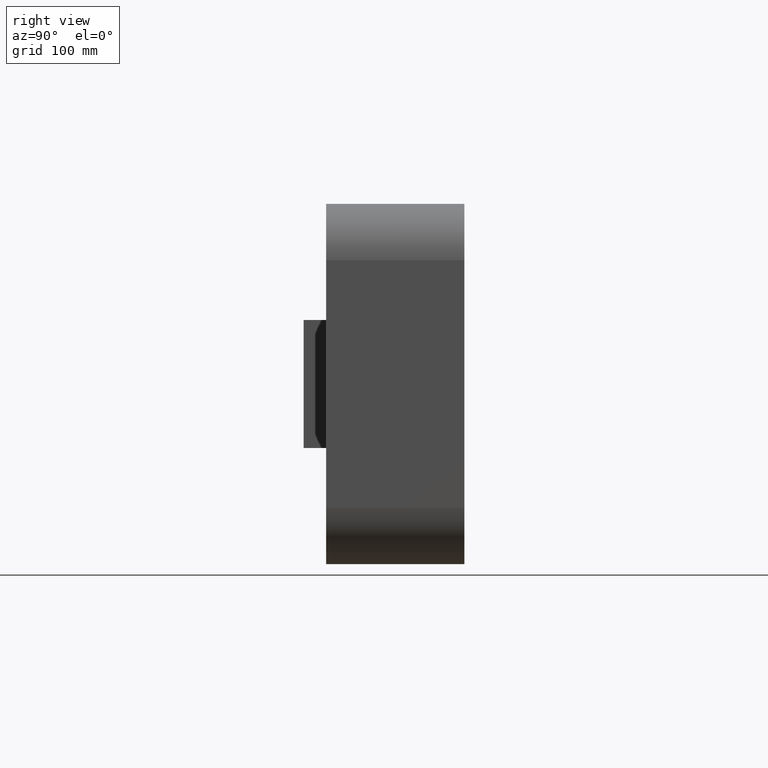
[diagram: clean part render]
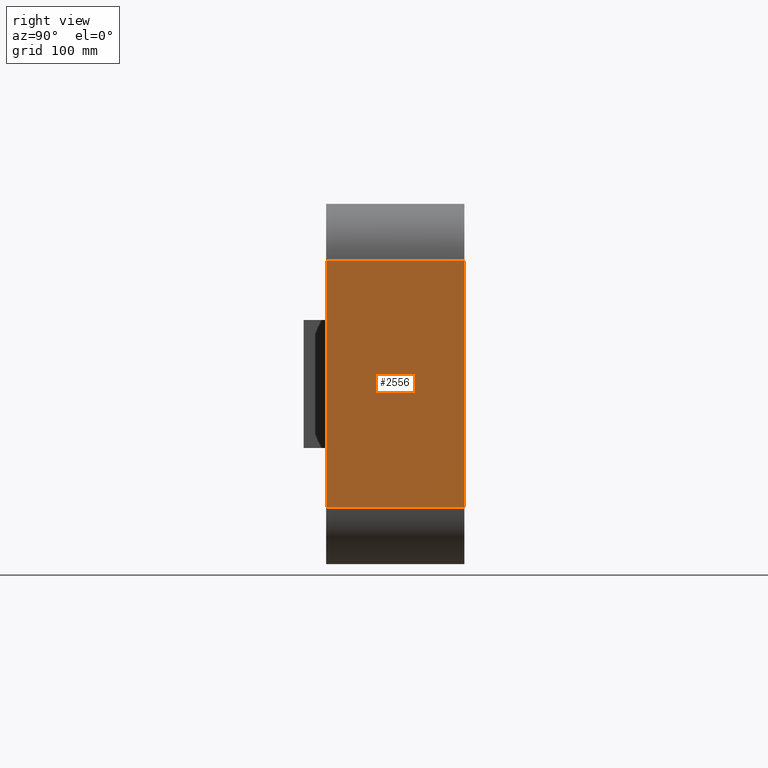
[diagram: same view with one face highlighted and labeled with its STEP entity id]
A machine part, right view. The second image highlights one B-rep face of the part: STEP entity #2556.
In plain terms, the highlighted planar face has unit normal (-1, 0, 0).
Its self-contained STEP definition (entity closure, byte-faithful):
#17 = VERTEX_POINT ( 'NONE', #2313 ) ;
#51 = CARTESIAN_POINT ( 'NONE',  ( 300.9999999999999400, 180.0000000000000000, -121.0000000000000300 ) ) ;
#160 = LINE ( 'NONE', #743, #3190 ) ;
#413 = ORIENTED_EDGE ( 'NONE', *, *, #3834, .T. ) ;
#421 = ORIENTED_EDGE ( 'NONE', *, *, #705, .T. ) ;
#435 = ORIENTED_EDGE ( 'NONE', *, *, #465, .F. ) ;
#459 = ORIENTED_EDGE ( 'NONE', *, *, #1136, .F. ) ;
#465 = EDGE_CURVE ( 'NONE', #17, #834, #3661, .T. ) ;
#670 = VERTEX_POINT ( 'NONE', #3838 ) ;
#672 = FACE_OUTER_BOUND ( 'NONE', #2045, .T. ) ;
#705 = EDGE_CURVE ( 'NONE', #1361, #670, #3487, .T. ) ;
#743 = CARTESIAN_POINT ( 'NONE',  ( 300.9999999999999400, 0.0000000000000000000, -121.0000000000000300 ) ) ;
#834 = VERTEX_POINT ( 'NONE', #2515 ) ;
#954 = CARTESIAN_POINT ( 'NONE',  ( 300.9999999999999400, 180.0000000000000000, -121.0000000000000300 ) ) ;
#1136 = EDGE_CURVE ( 'NONE', #1361, #17, #3072, .T. ) ;
#1361 = VERTEX_POINT ( 'NONE', #2184 ) ;
#1660 = DIRECTION ( 'NONE',  ( -1.000000000000000000, 0.0000000000000000000, 0.0000000000000000000 ) ) ;
#1718 = DIRECTION ( 'NONE',  ( 0.0000000000000000000, 0.0000000000000000000, 1.000000000000000000 ) ) ;
#2001 = CARTESIAN_POINT ( 'NONE',  ( 300.9999999999999400, 180.0000000000000000, 120.9999999999999700 ) ) ;
#2031 = DIRECTION ( 'NONE',  ( -0.0000000000000000000, -1.000000000000000000, -0.0000000000000000000 ) ) ;
#2045 = EDGE_LOOP ( 'NONE', ( #459, #421, #413, #435 ) ) ;
#2120 = PLANE ( 'NONE',  #3617 ) ;
#2184 = CARTESIAN_POINT ( 'NONE',  ( 300.9999999999999400, 135.0000000000000000, 120.9999999999999700 ) ) ;
#2313 = CARTESIAN_POINT ( 'NONE',  ( 300.9999999999999400, 135.0000000000000000, -121.0000000000000300 ) ) ;
#2412 = DIRECTION ( 'NONE',  ( -0.0000000000000000000, -1.000000000000000000, -0.0000000000000000000 ) ) ;
#2515 = CARTESIAN_POINT ( 'NONE',  ( 300.9999999999999400, 0.0000000000000000000, -121.0000000000000300 ) ) ;
#2556 = ADVANCED_FACE ( 'NONE', ( #672 ), #2120, .F. ) ;
#2970 = VECTOR ( 'NONE', #3642, 1000.000000000000000 ) ;
#3072 = LINE ( 'NONE', #3584, #2970 ) ;
#3190 = VECTOR ( 'NONE', #3656, 1000.000000000000000 ) ;
#3427 = VECTOR ( 'NONE', #2412, 1000.000000000000000 ) ;
#3487 = LINE ( 'NONE', #2001, #3427 ) ;
#3584 = CARTESIAN_POINT ( 'NONE',  ( 300.9999999999999400, 135.0000000000000000, 120.9999999999999700 ) ) ;
#3617 = AXIS2_PLACEMENT_3D ( 'NONE', #51, #1660, #1718 ) ;
#3642 = DIRECTION ( 'NONE',  ( 0.0000000000000000000, 0.0000000000000000000, -1.000000000000000000 ) ) ;
#3656 = DIRECTION ( 'NONE',  ( -0.0000000000000000000, -0.0000000000000000000, -1.000000000000000000 ) ) ;
#3661 = LINE ( 'NONE', #954, #3778 ) ;
#3778 = VECTOR ( 'NONE', #2031, 1000.000000000000000 ) ;
#3834 = EDGE_CURVE ( 'NONE', #670, #834, #160, .T. ) ;
#3838 = CARTESIAN_POINT ( 'NONE',  ( 300.9999999999999400, 0.0000000000000000000, 120.9999999999999700 ) ) ;